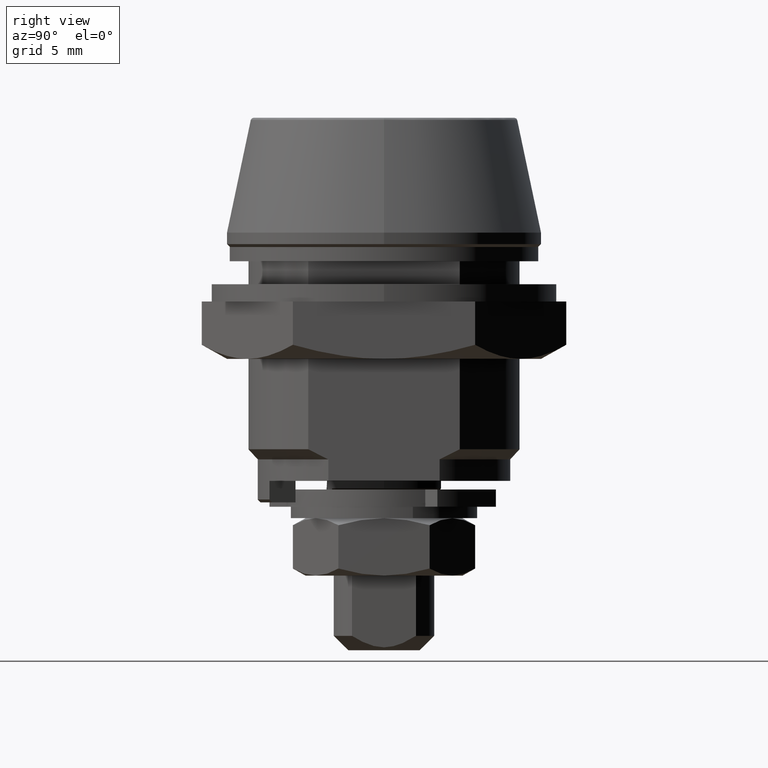
[diagram: clean part render]
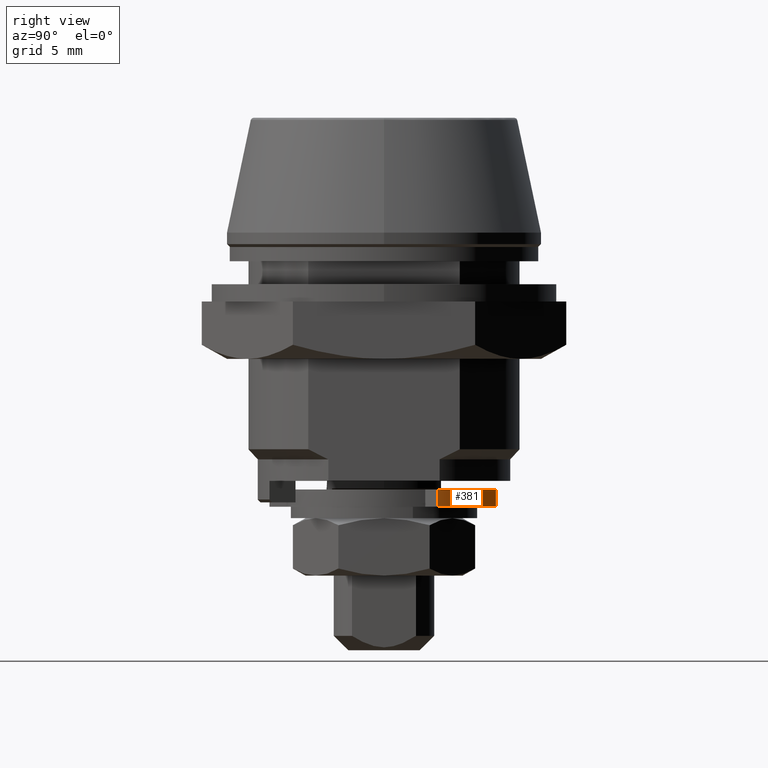
[diagram: same view with one face highlighted and labeled with its STEP entity id]
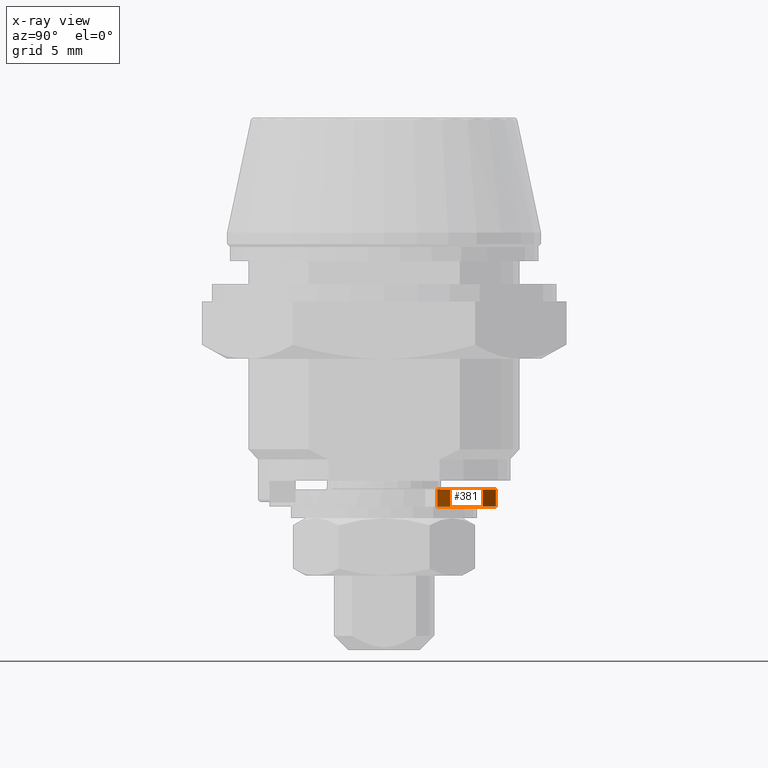
[diagram: x-ray of the same camera — body ghosted, the highlighted face saturated]
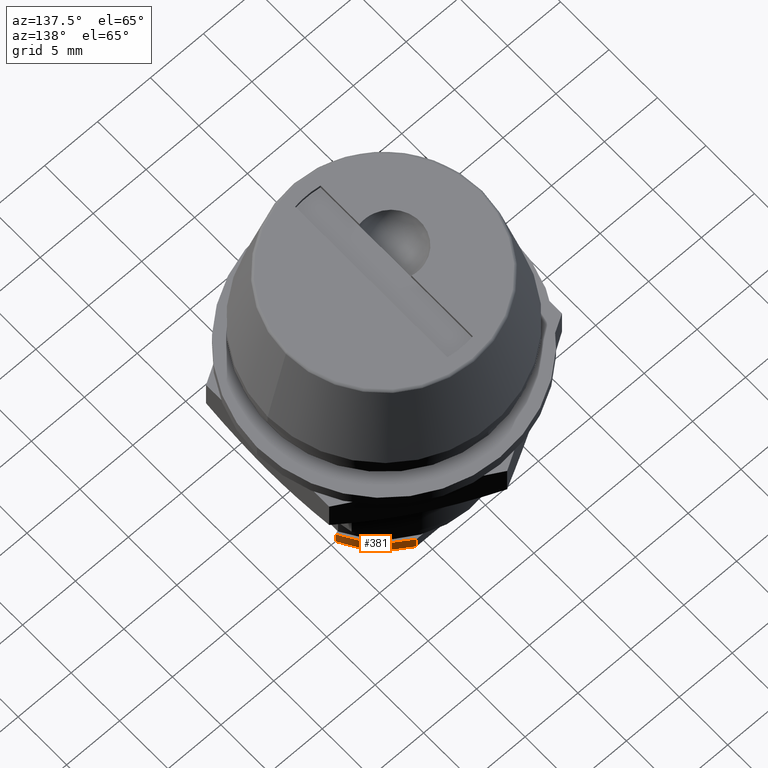
[diagram: same view with one face highlighted and labeled with its STEP entity id]
A machine part, right view. The second image highlights one B-rep face of the part: STEP entity #381.
The next image is the same camera in x-ray: the body ghosted, the highlighted face saturated — about 0% of this face is hidden behind the body in this view.
A second angle (auxiliary view) of the same face is appended — the face is thin or edge-on in the first view.
In plain terms, the highlighted cylindrical surface (partial cylindrical patch) has radius 8.8 mm, axis along (-0, 0, 1).
Its self-contained STEP definition (entity closure, byte-faithful):
#381=ADVANCED_FACE('',(#1637),#1636,.T.);
#1636=CYLINDRICAL_SURFACE('',#2667,8.80000000000E+000);
#1637=FACE_OUTER_BOUND('',#2668,.T.);
#2664=CARTESIAN_POINT('',(-4.88858117366E-015,4.26481282342E-015,-2.01000000000E+001));
#2665=DIRECTION('',(-7.46148458603E-016,8.58831873853E-015,1.00000000000E+000));
#2666=DIRECTION('',(-4.62989745098E-001,-8.86363636401E-001,7.26691434300E-015));
#2667=AXIS2_PLACEMENT_3D('',#2664,#2665,#2666);
#2668=EDGE_LOOP('',(#3530,#3531,#3532,#3533));
#3530=ORIENTED_EDGE('',*,*,#3902,.T.);
#3531=ORIENTED_EDGE('',*,*,#3914,.F.);
#3532=ORIENTED_EDGE('',*,*,#3993,.T.);
#3533=ORIENTED_EDGE('',*,*,#4005,.F.);
#3902=EDGE_CURVE('',#5594,#5587,#5595,.T.);
#3914=EDGE_CURVE('',#5670,#5587,#5677,.T.);
#3993=EDGE_CURVE('',#5670,#6201,#6208,.T.);
#4005=EDGE_CURVE('',#5594,#6201,#6286,.T.);
#5587=VERTEX_POINT('',#7546);
#5594=VERTEX_POINT('',#7550);
#5595=CIRCLE('',#7554,8.79999999985E+000);
#5670=VERTEX_POINT('',#7598);
#5677=LINE('',#7602,#7603);
#6201=VERTEX_POINT('',#7928);
#6208=CIRCLE('',#7935,8.80000000005E+000);
#6286=LINE('',#7983,#7984);
#7546=CARTESIAN_POINT('',(4.07430975700E+000,7.80000000000E+000,-2.13000000000E+001));
#7550=CARTESIAN_POINT('',(7.97550852600E+000,3.71904070300E+000,-2.13000000000E+001));
#7551=CARTESIAN_POINT('',(0.00000000000E+000,0.00000000000E+000,-2.13000000000E+001));
#7552=DIRECTION('',(0.00000000000E+000,-0.00000000000E+000,1.00000000000E+000));
#7553=DIRECTION('',(-9.06307787052E-001,-4.22618261708E-001,-0.00000000000E+000));
#7554=AXIS2_PLACEMENT_3D('',#7551,#7552,#7553);
#7598=CARTESIAN_POINT('',(4.07430975700E+000,7.80000000000E+000,-2.01000000000E+001));
#7602=CARTESIAN_POINT('',(4.07430975700E+000,7.80000000000E+000,-2.01000000000E+001));
#7603=VECTOR('',#7604,1.20000000000E+000);
#7604=DIRECTION('',(0.00000000000E+000,0.00000000000E+000,-1.00000000000E+000));
#7928=CARTESIAN_POINT('',(7.97550852600E+000,3.71904070300E+000,-2.01000000000E+001));
#7932=CARTESIAN_POINT('',(-2.64013099695E-014,4.35767490449E-014,-2.01000000000E+001));
#7933=DIRECTION('',(2.85959798459E-015,-6.50394082537E-015,-1.00000000000E+000));
#7934=DIRECTION('',(-4.62989745169E-001,-8.86363636364E-001,4.44089209850E-015));
#7935=AXIS2_PLACEMENT_3D('',#7932,#7933,#7934);
#7983=CARTESIAN_POINT('',(7.97550852600E+000,3.71904070300E+000,-2.13000000000E+001));
#7984=VECTOR('',#7985,1.20000000000E+000);
#7985=DIRECTION('',(0.00000000000E+000,0.00000000000E+000,1.00000000000E+000));